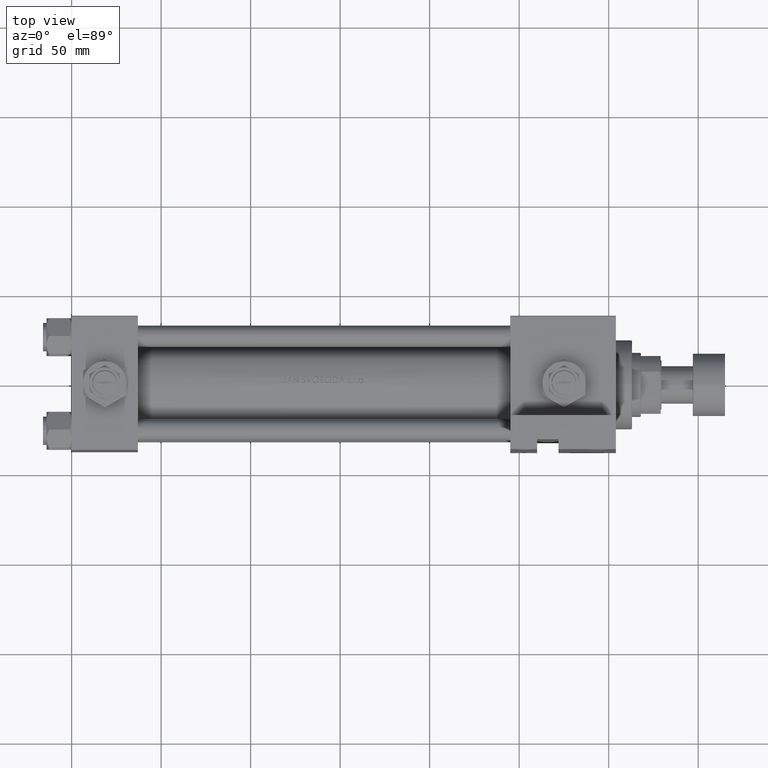
[diagram: clean part render]
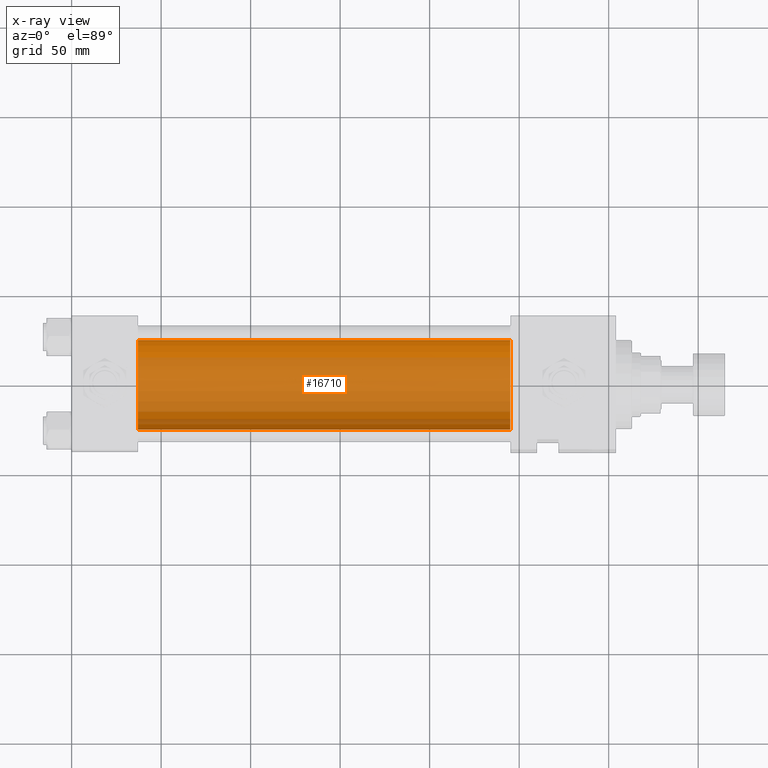
[diagram: x-ray — body ghosted, one internal face saturated and labeled with its STEP entity id]
A machine part, top view, then the same camera in x-ray: the body is ghosted and one INTERNAL B-rep face — a face not visible from any outside direction — is saturated and labeled: STEP entity #16710.
In plain terms, the highlighted cylindrical surface (partial cylindrical patch) has radius 25 mm, axis along (-1, -0, 0).
Its self-contained STEP definition (entity closure, byte-faithful):
#388 = AXIS2_PLACEMENT_3D ( 'NONE', #14857, #48566, #13847 ) ;
#1710 = ORIENTED_EDGE ( 'NONE', *, *, #49591, .F. ) ;
#2011 = VERTEX_POINT ( 'NONE', #40087 ) ;
#2543 = DIRECTION ( 'NONE',  ( 1.000000000000000000, 0.000000000000000000, 0.000000000000000000 ) ) ;
#10689 = FACE_OUTER_BOUND ( 'NONE', #18458, .T. ) ;
#10948 = DIRECTION ( 'NONE',  ( -1.000000000000000000, -0.000000000000000000, -0.000000000000000000 ) ) ;
#11909 = VECTOR ( 'NONE', #10948, 1000.000000000000000 ) ;
#13727 = CARTESIAN_POINT ( 'NONE',  ( 37.00000000000000000, 3.122849337825749828E-15, -25.50000000000000355 ) ) ;
#13822 = ORIENTED_EDGE ( 'NONE', *, *, #42110, .T. ) ;
#13847 = DIRECTION ( 'NONE',  ( 0.000000000000000000, 0.000000000000000000, -1.000000000000000000 ) ) ;
#14754 = LINE ( 'NONE', #30208, #11909 ) ;
#14857 = CARTESIAN_POINT ( 'NONE',  ( 245.0000000000000000, 6.123233995736772199E-17, -0.5000000000000004441 ) ) ;
#15182 = AXIS2_PLACEMENT_3D ( 'NONE', #26146, #38057, #45653 ) ;
#16022 = VERTEX_POINT ( 'NONE', #13727 ) ;
#16173 = LINE ( 'NONE', #31367, #31909 ) ;
#16272 = VERTEX_POINT ( 'NONE', #33174 ) ;
#16710 = ADVANCED_FACE ( 'NONE', ( #10689 ), #25202, .F. ) ;
#18016 = CARTESIAN_POINT ( 'NONE',  ( 37.00000000000000000, 6.123233995736772199E-17, -0.5000000000000004441 ) ) ;
#18458 = EDGE_LOOP ( 'NONE', ( #1710, #13822, #35027, #43250 ) ) ;
#18970 = CIRCLE ( 'NONE', #48915, 25.00000000000000000 ) ;
#24669 = EDGE_CURVE ( 'NONE', #16022, #16272, #18970, .T. ) ;
#25202 = CYLINDRICAL_SURFACE ( 'NONE', #15182, 25.00000000000000000 ) ;
#26146 = CARTESIAN_POINT ( 'NONE',  ( 245.0000000000000000, 6.123233995736772199E-17, -0.5000000000000004441 ) ) ;
#30208 = CARTESIAN_POINT ( 'NONE',  ( 245.0000000000000000, 3.122849337825749828E-15, -25.50000000000000355 ) ) ;
#31367 = CARTESIAN_POINT ( 'NONE',  ( 245.0000000000000000, 6.123233995736772199E-17, 24.50000000000000000 ) ) ;
#31909 = VECTOR ( 'NONE', #46832, 1000.000000000000000 ) ;
#33174 = CARTESIAN_POINT ( 'NONE',  ( 37.00000000000000000, 6.123233995736772199E-17, 24.50000000000000000 ) ) ;
#35027 = ORIENTED_EDGE ( 'NONE', *, *, #40124, .T. ) ;
#36638 = CARTESIAN_POINT ( 'NONE',  ( 245.0000000000000000, 3.122849337825749828E-15, -25.50000000000000355 ) ) ;
#38057 = DIRECTION ( 'NONE',  ( -1.000000000000000000, -0.000000000000000000, -0.000000000000000000 ) ) ;
#40087 = CARTESIAN_POINT ( 'NONE',  ( 245.0000000000000000, 6.123233995736772199E-17, 24.50000000000000000 ) ) ;
#40124 = EDGE_CURVE ( 'NONE', #2011, #16272, #16173, .T. ) ;
#42110 = EDGE_CURVE ( 'NONE', #48479, #2011, #42524, .T. ) ;
#42524 = CIRCLE ( 'NONE', #388, 25.00000000000000000 ) ;
#43250 = ORIENTED_EDGE ( 'NONE', *, *, #24669, .F. ) ;
#45653 = DIRECTION ( 'NONE',  ( 0.000000000000000000, 0.000000000000000000, 1.000000000000000000 ) ) ;
#46832 = DIRECTION ( 'NONE',  ( -1.000000000000000000, -0.000000000000000000, -0.000000000000000000 ) ) ;
#48479 = VERTEX_POINT ( 'NONE', #36638 ) ;
#48566 = DIRECTION ( 'NONE',  ( 1.000000000000000000, 0.000000000000000000, 0.000000000000000000 ) ) ;
#48915 = AXIS2_PLACEMENT_3D ( 'NONE', #18016, #2543, #48942 ) ;
#48942 = DIRECTION ( 'NONE',  ( 0.000000000000000000, 0.000000000000000000, -1.000000000000000000 ) ) ;
#49591 = EDGE_CURVE ( 'NONE', #48479, #16022, #14754, .T. ) ;